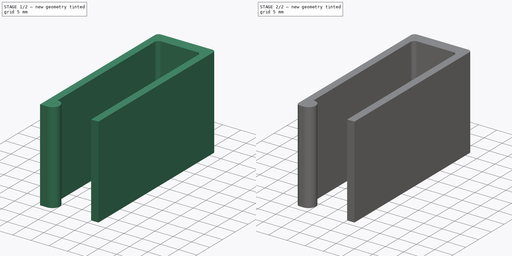
[diagram: build sequence overview — one tinted view per stage of 2, left to right]
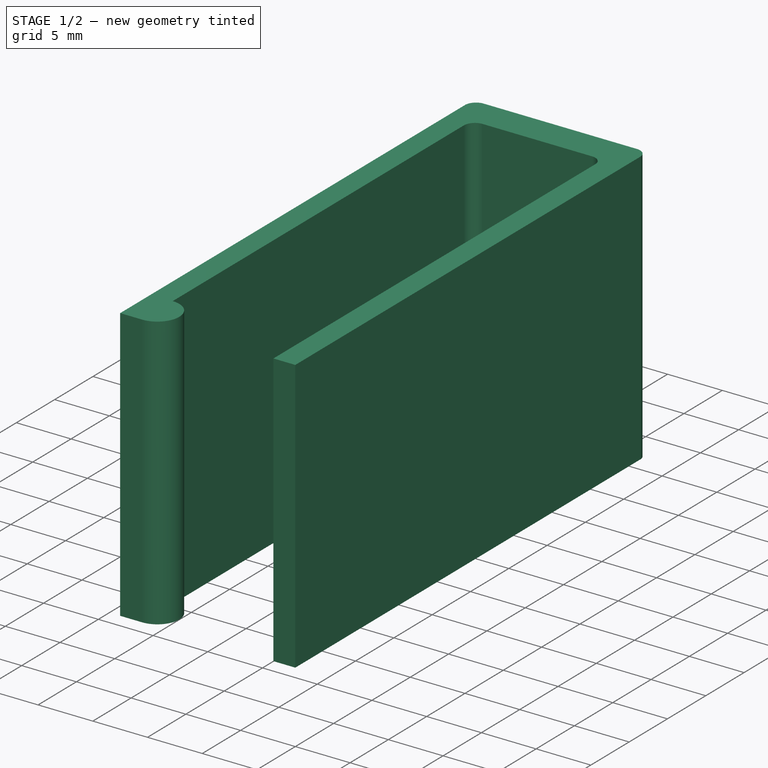
[diagram: stage 1 of 2 — iso view after this stage's code; geometry added in this stage tinted green]
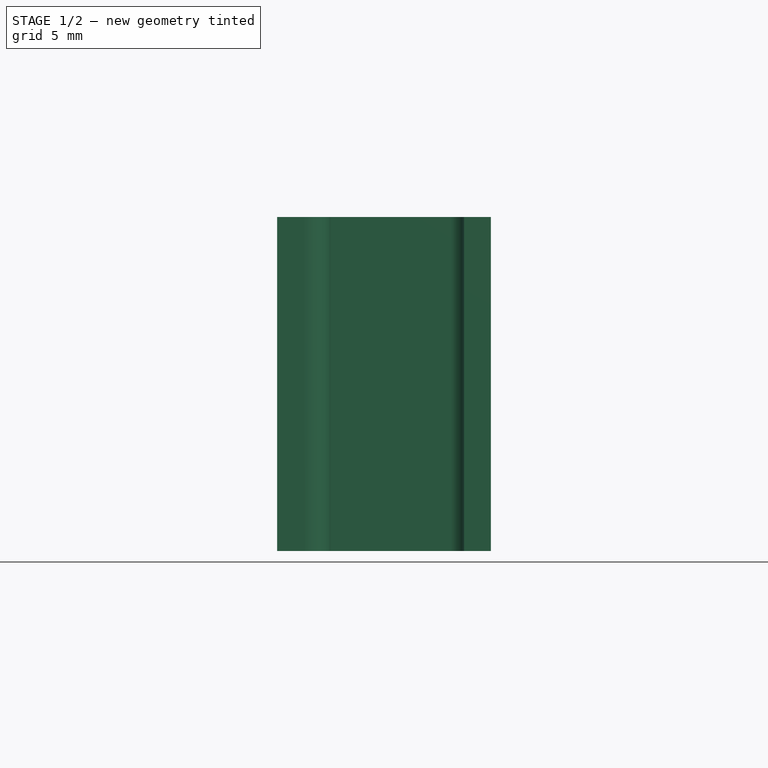
[diagram: stage 1 of 2 — front view after this stage's code; geometry added in this stage tinted green]
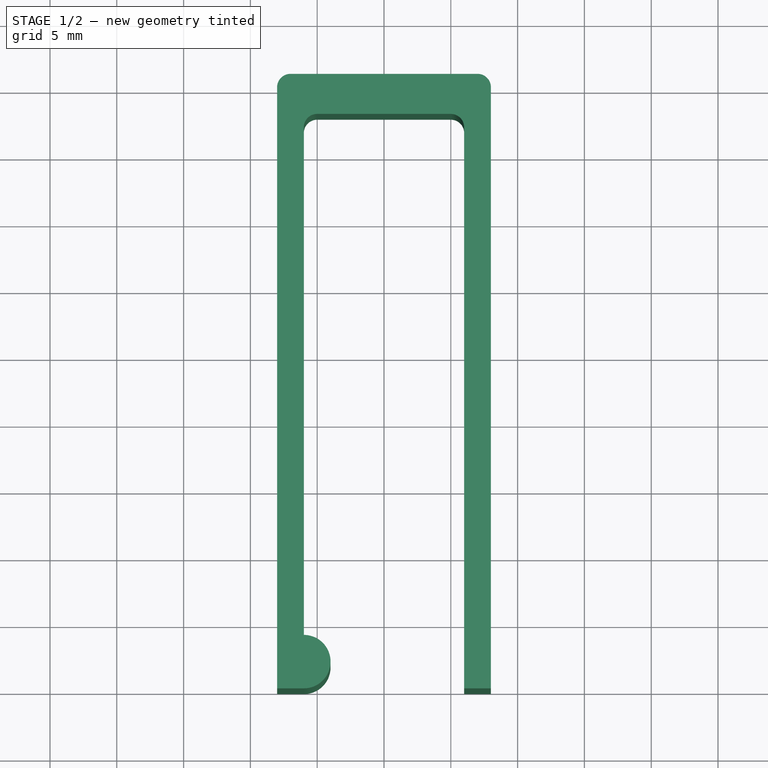
[diagram: stage 1 of 2 — top view after this stage's code; geometry added in this stage tinted green]
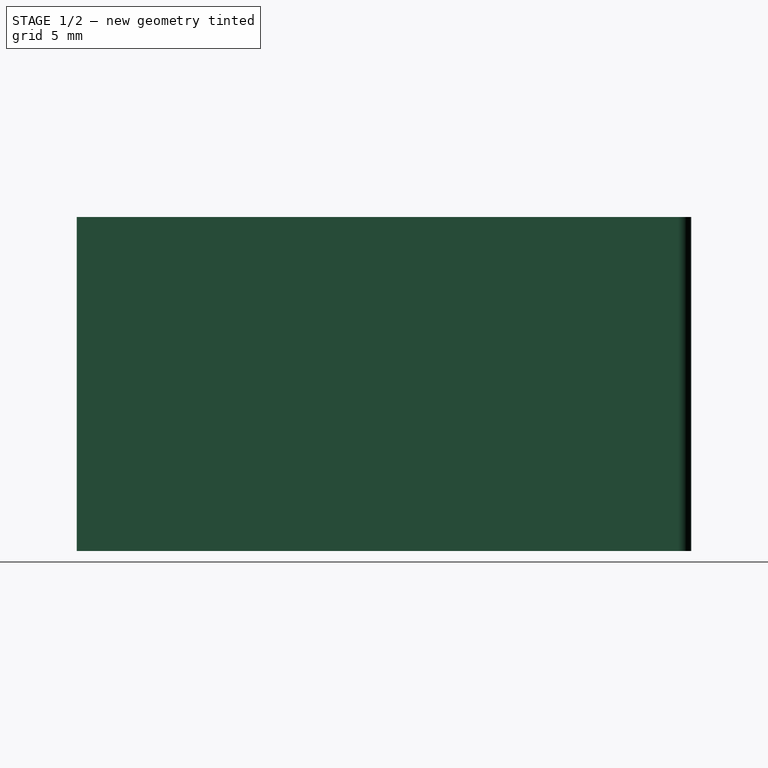
[diagram: stage 1 of 2 — right view after this stage's code; geometry added in this stage tinted green]
FCSTD DOCUMENT  (FreeCAD 0.20R25352 (Git))
Label: bt rx-tx-10 board clip
License: All rights reserved
LicenseURL: http://en.wikipedia.org/wiki/All_rights_reserved
objects: Sketcher::SketchObject×1, PartDesign::Pad×1, PartDesign::Fillet×1, PartDesign::Body×1
note: 6 computed .brp shape members not serialized (recipe doc carries the construction recipe); baked Part::Feature solids carry a one-line shape summary decoded from their .brp

FEATURE [Sketcher::SketchObject] Sketch
  FullyConstrained = true
  MapMode = 5
  Support = -> [XY_Plane]
  sketch-geometry (13):
    g0: LineSegment StartX=8 StartY=0 StartZ=0 EndX=8 EndY=-45 EndZ=0
    g1: LineSegment StartX=8 StartY=-45 StartZ=0 EndX=6 EndY=-45 EndZ=0
    g2: LineSegment StartX=6 StartY=-45 StartZ=0 EndX=6 EndY=-3 EndZ=0
    g3: LineSegment StartX=-6 StartY=-45 StartZ=0 EndX=-8 EndY=-45 EndZ=0
    g4: LineSegment StartX=-8 StartY=-45 StartZ=0 EndX=-8 EndY=0 EndZ=0
    g5: LineSegment StartX=-6 StartY=-3 StartZ=0 EndX=-6 EndY=-41 EndZ=0
    g6: ArcOfCircle CenterX=-6 CenterY=-43 CenterZ=0 NormalX=0 NormalY=0 NormalZ=1 AngleXU=0 Radius=2 StartAngle=4.71239 EndAngle=7.85398
    g7: LineSegment StartX=-5 StartY=-2 StartZ=0 EndX=5 EndY=-2 EndZ=0
    g8: ArcOfCircle CenterX=5 CenterY=-3 CenterZ=0 NormalX=0 NormalY=0 NormalZ=1 AngleXU=0 Radius=1 StartAngle=0 EndAngle=1.5708
    g9: ArcOfCircle CenterX=-5 CenterY=-3 CenterZ=0 NormalX=0 NormalY=0 NormalZ=1 AngleXU=0 Radius=1 StartAngle=1.5708 EndAngle=3.14159
    g10: LineSegment StartX=-7 StartY=1 StartZ=0 EndX=7 EndY=1 EndZ=0
    g11: ArcOfCircle CenterX=-7 CenterY=1e-16 CenterZ=0 NormalX=0 NormalY=0 NormalZ=1 AngleXU=0 Radius=1 StartAngle=1.5708 EndAngle=3.14159
    g12: ArcOfCircle CenterX=7 CenterY=-1e-16 CenterZ=0 NormalX=0 NormalY=0 NormalZ=1 AngleXU=0 Radius=1 StartAngle=1e-16 EndAngle=1.5708
  constraints (35):
    c: PointOnObject(g4,g-1)
    c: Vertical(g0)
    c: Coincident(g0,g1)
    c: Horizontal(g1)
    c: Coincident(g1,g2)
    c: Vertical(g2)
    c: Horizontal(g3)
    c: Coincident(g3,g4)
    c: Vertical(g4)
    c: Symmetric(g4,g0,g-1)
    c: Symmetric(g5,g2,g-2)
    c: DistanceX(g5,g2) = 12
    c: DistanceX(g4,g5) = 2
    c: DistanceY(g5,g4) = 3
    c: DistanceY(g4,g4) = 45
    c: Coincident(g6,g5)
    c: Coincident(g6,g3)
    c: Vertical(g3,g5)
    c: Radius(g6) = 2
    c: Horizontal(g7)
    c: DistanceY(g5,g7) = 1
    c: Tangent(g8,g7) = 1.5708
    c: Tangent(g8,g2) = -1.5708
    c: Tangent(g9,g7) = 1.5708
    c: Tangent(g9,g5) = -1.5708
    c: Equal(g9,g8)
    c: Coincident(g11,g10)
    c: Tangent(g12,g10) = 1.5708
    c: Tangent(g12,g0) = 1.5708
    c: Tangent(g11,g4) = 1.5708
    c: Tangent(g11,g10,g10) = 1.5708
    c: Horizontal(g10)
    c: DistanceY(g7,g10) = 3
    c: Equal(g4,g0)
    c: Vertical(g6,g3)
FEATURE [PartDesign::Pad] Pad
  Direction = (1,1,1)
  Length = 25
  Length2 = 100
  Profile = -> Sketch
  Type = 0
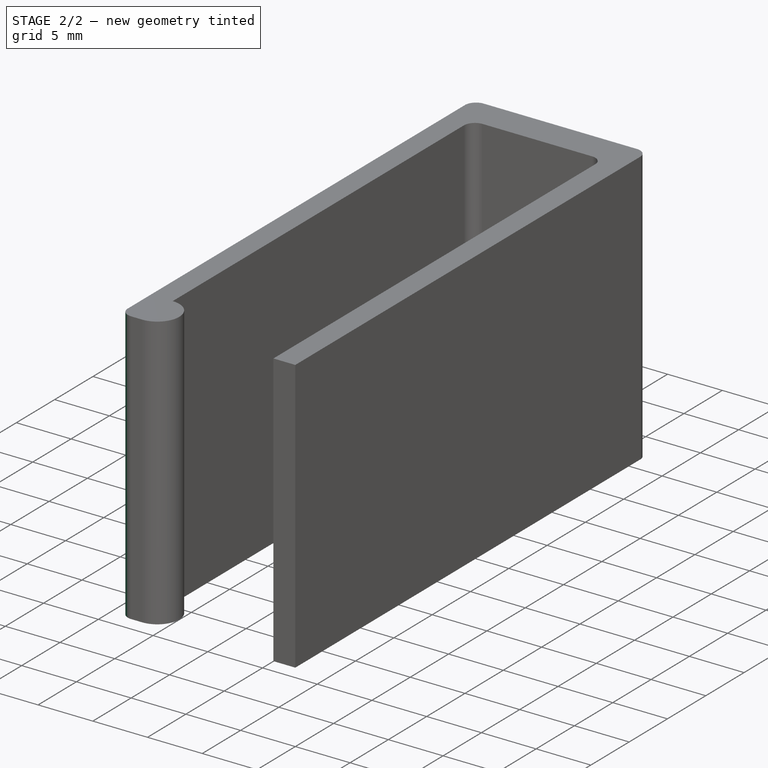
[diagram: stage 2 of 2 — iso view after this stage's code; geometry added in this stage tinted green]
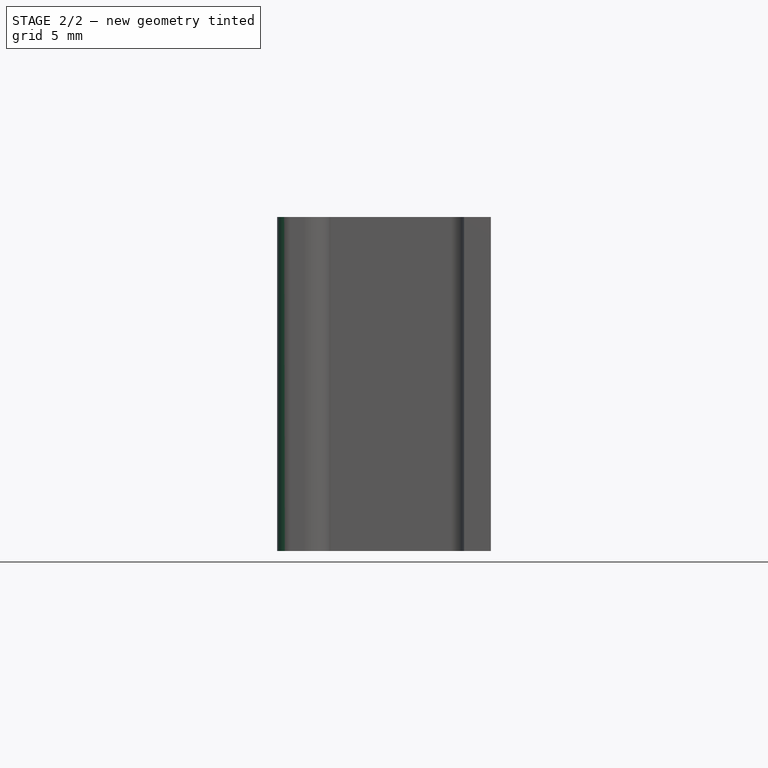
[diagram: stage 2 of 2 — front view after this stage's code; geometry added in this stage tinted green]
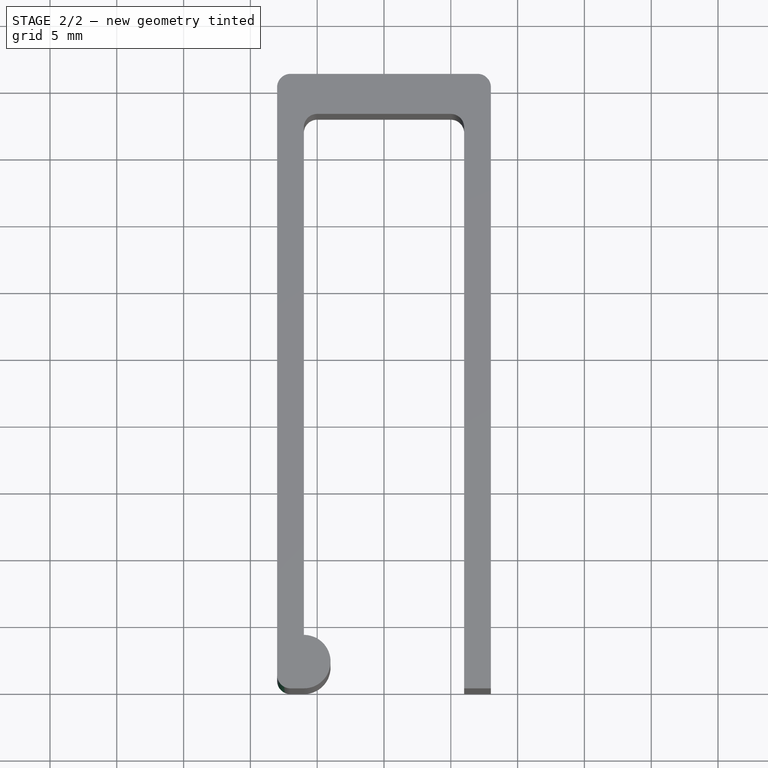
[diagram: stage 2 of 2 — top view after this stage's code; geometry added in this stage tinted green]
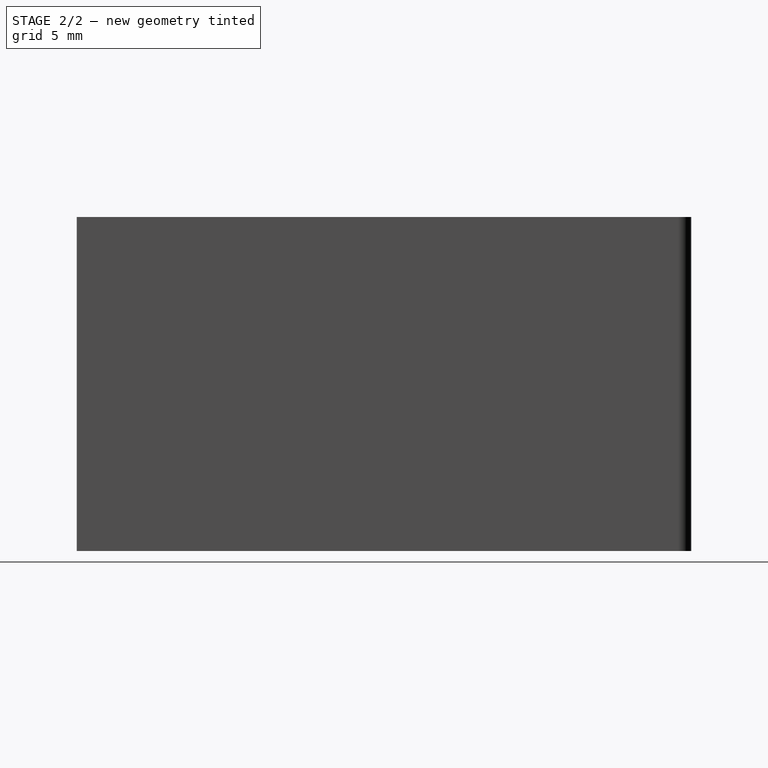
[diagram: stage 2 of 2 — right view after this stage's code; geometry added in this stage tinted green]
FEATURE [PartDesign::Fillet] Fillet
  Base = -> Pad [Edge26]
  BaseFeature = -> Pad
  Radius = 1
  SupportTransform = false
FEATURE [PartDesign::Body] Body
  Group = -> [Sketch,Pad,Fillet]
  Origin = -> Origin
  Tip = -> Fillet
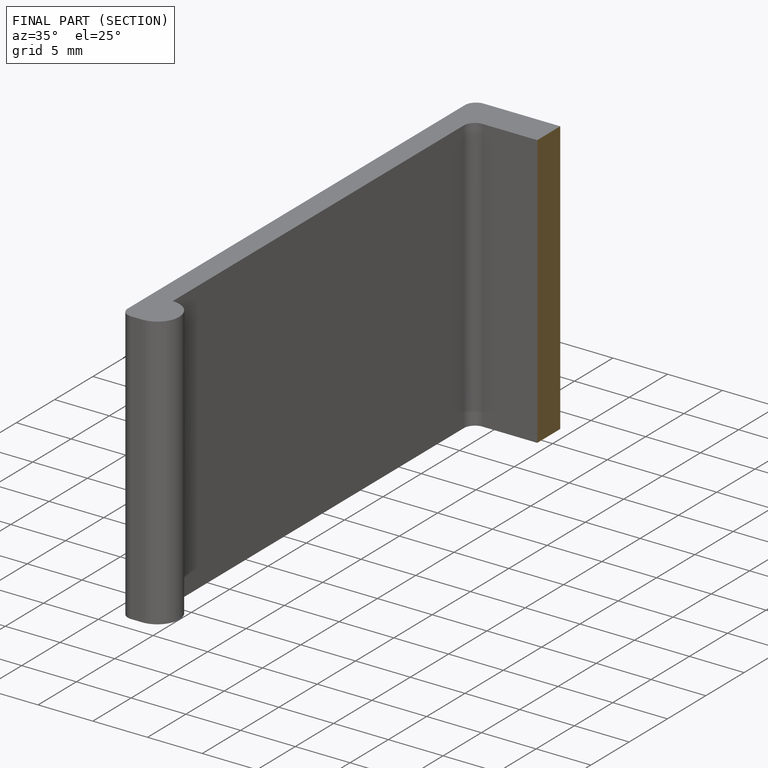
[diagram: finished part — half-section view (interior)]
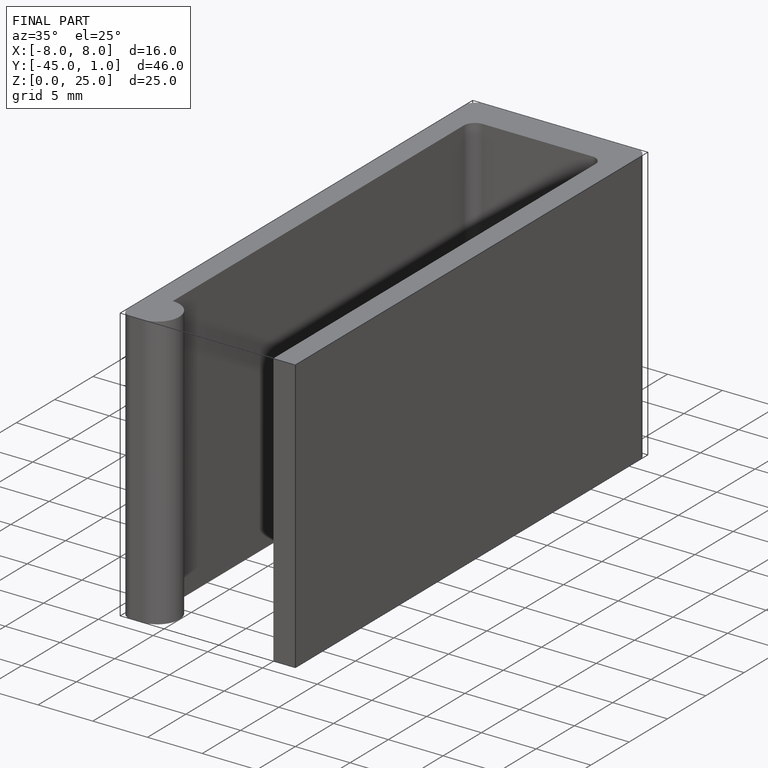
[diagram: finished part — iso view with bounding-box wireframe]
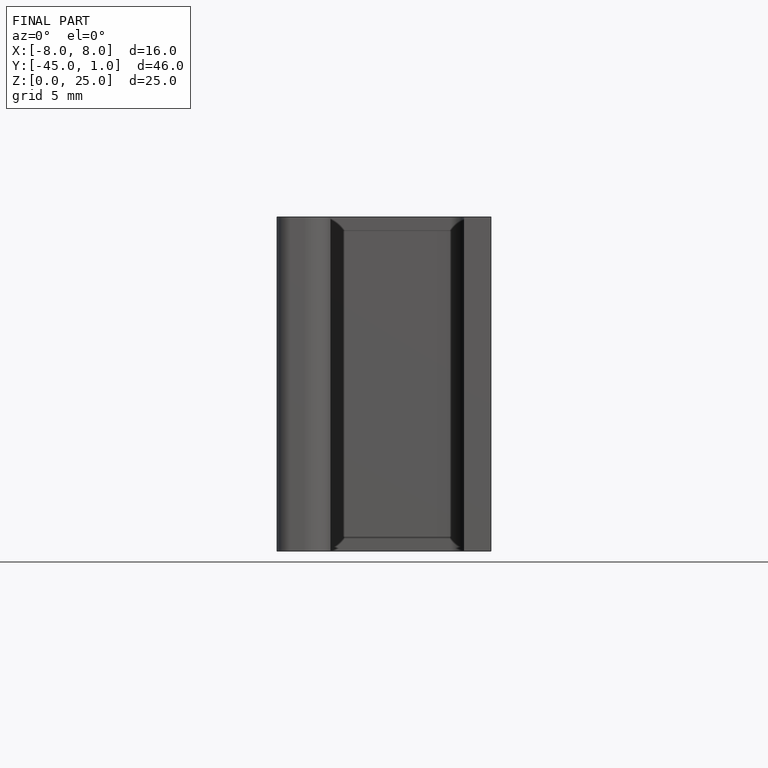
[diagram: finished part — front view with bounding-box wireframe]
